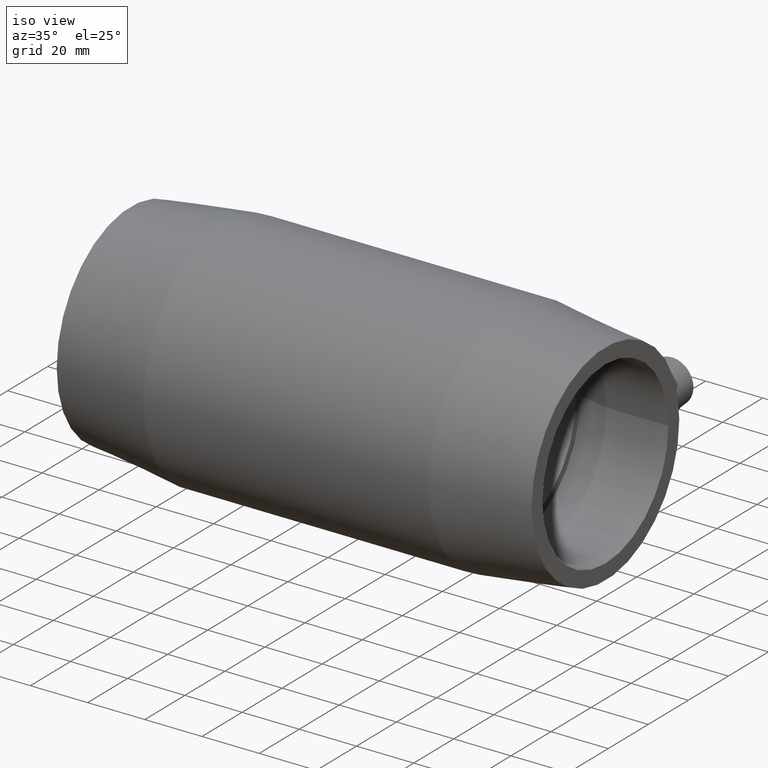
[diagram: clean part render]
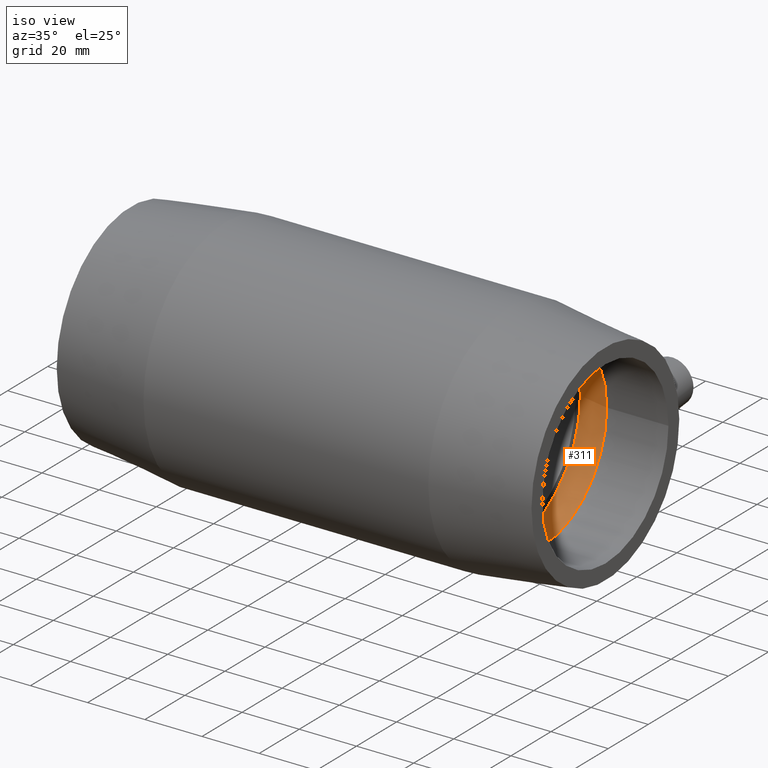
[diagram: same view with one face highlighted and labeled with its STEP entity id]
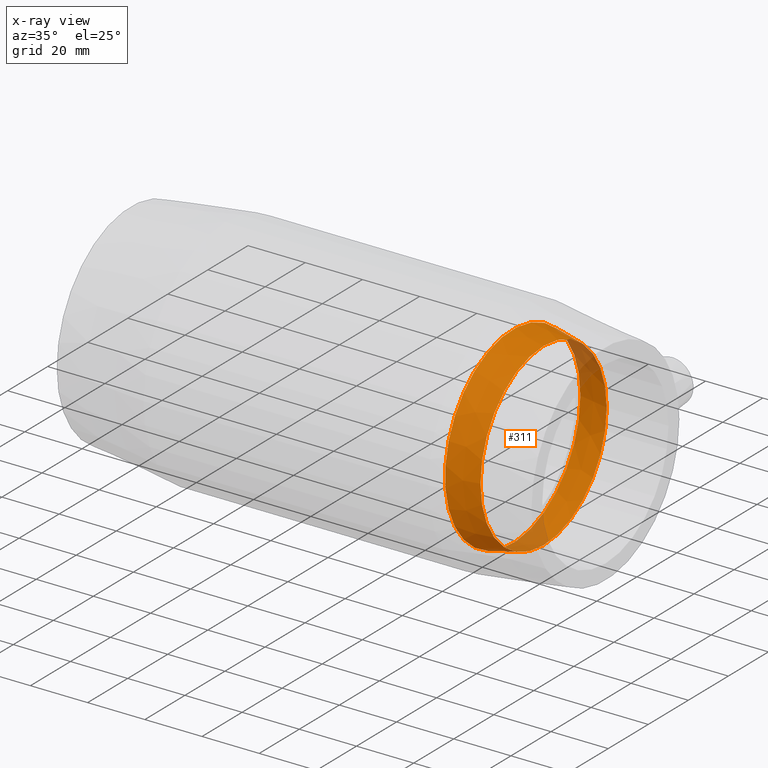
[diagram: x-ray of the same camera — body ghosted, the highlighted face saturated]
A machine part, iso view. The second image highlights one B-rep face of the part: STEP entity #311.
The next image is the same camera in x-ray: the body ghosted, the highlighted face saturated — about 10% of this face is hidden behind the body in this view.
In plain terms, the highlighted conical surface has half-angle 12 deg.
Its self-contained STEP definition (entity closure, byte-faithful):
#20=CONICAL_SURFACE('',#356,32.6478054330181,12.);
#38=FACE_BOUND('',#121,.T.);
#77=FACE_OUTER_BOUND('',#120,.T.);
#120=EDGE_LOOP('',(#258));
#121=EDGE_LOOP('',(#259));
#159=CIRCLE('',#355,31.5);
#160=CIRCLE('',#357,33.7956108660362);
#187=VERTEX_POINT('',#604);
#188=VERTEX_POINT('',#607);
#215=EDGE_CURVE('',#187,#187,#159,.T.);
#216=EDGE_CURVE('',#188,#188,#160,.T.);
#258=ORIENTED_EDGE('',*,*,#216,.F.);
#259=ORIENTED_EDGE('',*,*,#215,.T.);
#311=ADVANCED_FACE('',(#77,#38),#20,.F.);
#355=AXIS2_PLACEMENT_3D('',#605,#441,#442);
#356=AXIS2_PLACEMENT_3D('',#606,#443,#444);
#357=AXIS2_PLACEMENT_3D('',#608,#445,#446);
#441=DIRECTION('center_axis',(1.,0.,0.));
#442=DIRECTION('ref_axis',(0.,0.,-1.));
#443=DIRECTION('center_axis',(-1.,0.,0.));
#444=DIRECTION('ref_axis',(0.,1.,0.));
#445=DIRECTION('center_axis',(1.,0.,0.));
#446=DIRECTION('ref_axis',(0.,0.,-1.));
#604=CARTESIAN_POINT('',(61.4,31.5,0.));
#605=CARTESIAN_POINT('Origin',(61.4,0.,0.));
#606=CARTESIAN_POINT('Origin',(56.,0.,0.));
#607=CARTESIAN_POINT('',(50.6,33.7956108660362,0.));
#608=CARTESIAN_POINT('Origin',(50.6,0.,0.));